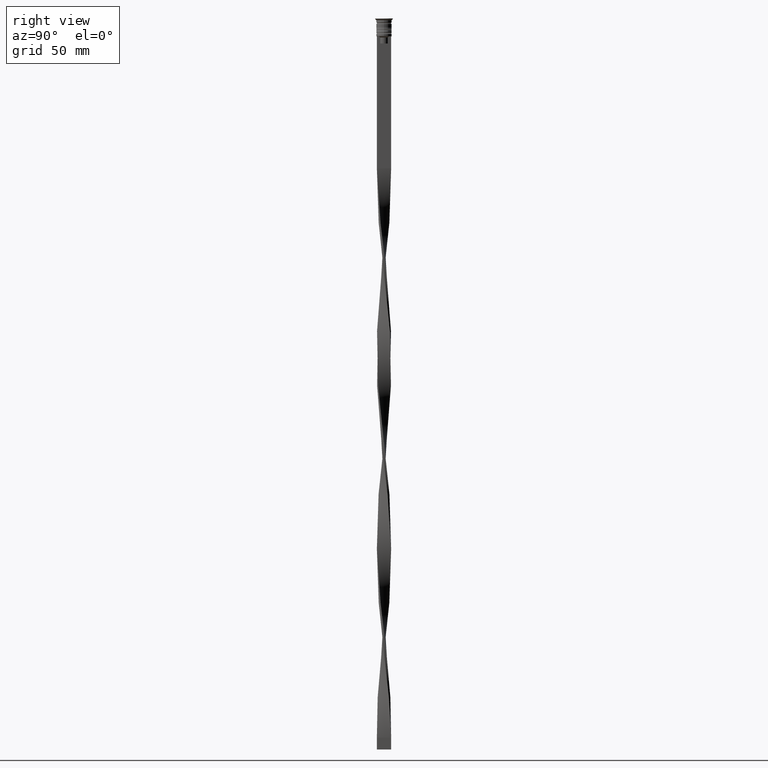
[diagram: clean part render]
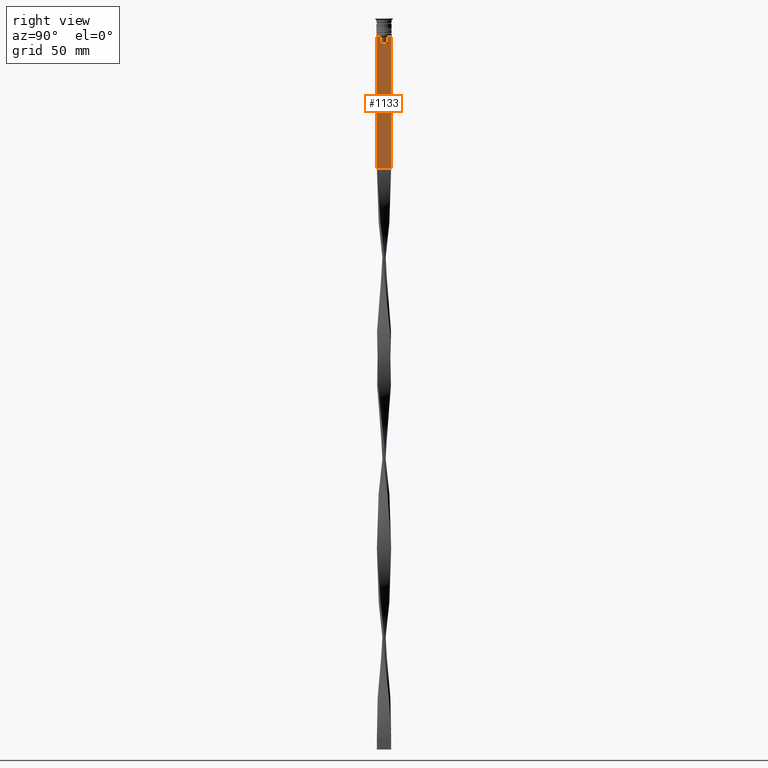
[diagram: same view with one face highlighted and labeled with its STEP entity id]
A machine part, right view. The second image highlights one B-rep face of the part: STEP entity #1133.
In plain terms, the highlighted planar face has unit normal (-1, 0, 0).
Its self-contained STEP definition (entity closure, byte-faithful):
#51 = CARTESIAN_POINT ( 'NONE',  ( 0.4999999999999998890, -2.091052366632653481, -7.500000000000000000 ) ) ;
#61 = EDGE_CURVE ( 'NONE', #1321, #872, #3564, .T. ) ;
#79 = CARTESIAN_POINT ( 'NONE',  ( 0.4999999999999998890, 1.572418519351642452, 0.000000000000000000 ) ) ;
#83 = VERTEX_POINT ( 'NONE', #2180 ) ;
#107 = ORIENTED_EDGE ( 'NONE', *, *, #2167, .T. ) ;
#137 = DIRECTION ( 'NONE',  ( 0.000000000000000000, -1.000000000000000000, 0.000000000000000000 ) ) ;
#169 = ORIENTED_EDGE ( 'NONE', *, *, #1551, .T. ) ;
#274 = VECTOR ( 'NONE', #3203, 1000.000000000000000 ) ;
#322 = LINE ( 'NONE', #543, #274 ) ;
#326 = ORIENTED_EDGE ( 'NONE', *, *, #3583, .T. ) ;
#333 = EDGE_CURVE ( 'NONE', #1866, #83, #322, .T. ) ;
#377 = B_SPLINE_CURVE_WITH_KNOTS ( 'NONE', 3,
 ( #1649, #744, #1635, #3694 ),
 .UNSPECIFIED., .F., .F.,
 ( 4, 4 ),
 ( 0.003696428037903523069, 0.004416830248125226156 ),
 .UNSPECIFIED. ) ;
#388 = CARTESIAN_POINT ( 'NONE',  ( 0.4999999999999998890, -1.746240429054158660, -7.834351036433149673 ) ) ;
#424 = B_SPLINE_CURVE_WITH_KNOTS ( 'NONE', 3,
 ( #3616, #388, #2720, #51 ),
 .UNSPECIFIED., .F., .F.,
 ( 4, 4 ),
 ( 0.008356915209744729747, 0.009073319521387651632 ),
 .UNSPECIFIED. ) ;
#434 = CARTESIAN_POINT ( 'NONE',  ( 0.4999999999999998890, 1.650000000000003464, -10.49999999999999822 ) ) ;
#465 = VECTOR ( 'NONE', #137, 1000.000000000000000 ) ;
#543 = CARTESIAN_POINT ( 'NONE',  ( 0.4999999999999998890, -3.000000000000000000, -7.500000000000000000 ) ) ;
#598 = DIRECTION ( 'NONE',  ( 0.000000000000000000, 0.000000000000000000, -1.000000000000000000 ) ) ;
#726 = LINE ( 'NONE', #1165, #1715 ) ;
#744 = CARTESIAN_POINT ( 'NONE',  ( 0.4999999999999998890, 1.918907889994530436, -7.667424704779945976 ) ) ;
#765 = DIRECTION ( 'NONE',  ( -1.000000000000000000, 0.000000000000000000, 0.000000000000000000 ) ) ;
#859 = CARTESIAN_POINT ( 'NONE',  ( 0.4999999999999998890, -2.091052366632653481, -7.500000000000000000 ) ) ;
#872 = VERTEX_POINT ( 'NONE', #2713 ) ;
#971 = DIRECTION ( 'NONE',  ( 0.000000000000000000, 0.000000000000000000, -1.000000000000000000 ) ) ;
#1055 = LINE ( 'NONE', #1963, #1352 ) ;
#1128 = DIRECTION ( 'NONE',  ( 0.000000000000000000, 0.000000000000000000, 1.000000000000000000 ) ) ;
#1133 = ADVANCED_FACE ( 'NONE', ( #2434 ), #2223, .F. ) ;
#1165 = CARTESIAN_POINT ( 'NONE',  ( 0.4999999999999998890, -3.000000000000000000, -7.500000000000000000 ) ) ;
#1174 = CARTESIAN_POINT ( 'NONE',  ( 0.4999999999999998890, 1.572418519351642452, -8.000000000000000000 ) ) ;
#1191 = EDGE_CURVE ( 'NONE', #1518, #3471, #1672, .T. ) ;
#1202 = VERTEX_POINT ( 'NONE', #2565 ) ;
#1287 = AXIS2_PLACEMENT_3D ( 'NONE', #2283, #765, #1128 ) ;
#1288 = CARTESIAN_POINT ( 'NONE',  ( 0.4999999999999998890, 3.000000000000000000, -7.500000000000000000 ) ) ;
#1321 = VERTEX_POINT ( 'NONE', #1503 ) ;
#1352 = VECTOR ( 'NONE', #1915, 1000.000000000000000 ) ;
#1395 = VERTEX_POINT ( 'NONE', #2985 ) ;
#1503 = CARTESIAN_POINT ( 'NONE',  ( 0.4999999999999998890, -1.572418519351642452, -10.49999999999999822 ) ) ;
#1518 = VERTEX_POINT ( 'NONE', #1288 ) ;
#1541 = VECTOR ( 'NONE', #971, 1000.000000000000000 ) ;
#1546 = VECTOR ( 'NONE', #598, 1000.000000000000000 ) ;
#1551 = EDGE_CURVE ( 'NONE', #1518, #2562, #726, .T. ) ;
#1635 = CARTESIAN_POINT ( 'NONE',  ( 0.4999999999999998890, 1.746261636039131870, -7.834330826581080487 ) ) ;
#1649 = CARTESIAN_POINT ( 'NONE',  ( 0.4999999999999998890, 2.091052366632653481, -7.500000000000000000 ) ) ;
#1653 = DIRECTION ( 'NONE',  ( 0.000000000000000000, 0.000000000000000000, -1.000000000000000000 ) ) ;
#1672 = LINE ( 'NONE', #2825, #2715 ) ;
#1715 = VECTOR ( 'NONE', #2620, 1000.000000000000000 ) ;
#1743 = ORIENTED_EDGE ( 'NONE', *, *, #333, .T. ) ;
#1866 = VERTEX_POINT ( 'NONE', #859 ) ;
#1893 = LINE ( 'NONE', #434, #465 ) ;
#1901 = ORIENTED_EDGE ( 'NONE', *, *, #2380, .T. ) ;
#1915 = DIRECTION ( 'NONE',  ( 0.000000000000000000, 1.000000000000000000, 0.000000000000000000 ) ) ;
#1963 = CARTESIAN_POINT ( 'NONE',  ( 0.4999999999999998890, -3.000000000000000000, -63.00000000000000000 ) ) ;
#2068 = ORIENTED_EDGE ( 'NONE', *, *, #1191, .F. ) ;
#2167 = EDGE_CURVE ( 'NONE', #872, #1866, #424, .T. ) ;
#2180 = CARTESIAN_POINT ( 'NONE',  ( 0.4999999999999998890, -3.000000000000000000, -7.500000000000000000 ) ) ;
#2189 = EDGE_LOOP ( 'NONE', ( #169, #326, #3603, #2406, #2628, #107, #1743, #1901, #2509, #2068 ) ) ;
#2223 = PLANE ( 'NONE',  #1287 ) ;
#2283 = CARTESIAN_POINT ( 'NONE',  ( 0.4999999999999998890, -3.000000000000000000, -1.417237469701779329 ) ) ;
#2380 = EDGE_CURVE ( 'NONE', #83, #1202, #3336, .T. ) ;
#2406 = ORIENTED_EDGE ( 'NONE', *, *, #2940, .T. ) ;
#2434 = FACE_OUTER_BOUND ( 'NONE', #2189, .T. ) ;
#2470 = CARTESIAN_POINT ( 'NONE',  ( 0.4999999999999998890, -3.000000000000000000, -1.417237469701779329 ) ) ;
#2509 = ORIENTED_EDGE ( 'NONE', *, *, #2681, .T. ) ;
#2562 = VERTEX_POINT ( 'NONE', #3505 ) ;
#2565 = CARTESIAN_POINT ( 'NONE',  ( 0.4999999999999998890, -3.000000000000000000, -63.00000000000000000 ) ) ;
#2620 = DIRECTION ( 'NONE',  ( 0.000000000000000000, -1.000000000000000000, 0.000000000000000000 ) ) ;
#2628 = ORIENTED_EDGE ( 'NONE', *, *, #61, .T. ) ;
#2681 = EDGE_CURVE ( 'NONE', #1202, #3471, #1055, .T. ) ;
#2713 = CARTESIAN_POINT ( 'NONE',  ( 0.4999999999999998890, -1.572418519351642452, -8.000000000000000000 ) ) ;
#2715 = VECTOR ( 'NONE', #1653, 1000.000000000000000 ) ;
#2720 = CARTESIAN_POINT ( 'NONE',  ( 0.4999999999999998890, -1.918909712772151721, -7.667422931978337353 ) ) ;
#2804 = DIRECTION ( 'NONE',  ( -0.000000000000000000, -0.000000000000000000, 1.000000000000000000 ) ) ;
#2808 = CARTESIAN_POINT ( 'NONE',  ( 0.4999999999999998890, 3.000000000000000000, -63.00000000000000000 ) ) ;
#2825 = CARTESIAN_POINT ( 'NONE',  ( 0.4999999999999998890, 3.000000000000000000, -1.417237469701779329 ) ) ;
#2940 = EDGE_CURVE ( 'NONE', #1395, #1321, #1893, .T. ) ;
#2985 = CARTESIAN_POINT ( 'NONE',  ( 0.4999999999999998890, 1.572418519351642452, -10.49999999999999822 ) ) ;
#3074 = VERTEX_POINT ( 'NONE', #1174 ) ;
#3203 = DIRECTION ( 'NONE',  ( 0.000000000000000000, -1.000000000000000000, 0.000000000000000000 ) ) ;
#3280 = LINE ( 'NONE', #79, #1546 ) ;
#3336 = LINE ( 'NONE', #2470, #1541 ) ;
#3406 = CARTESIAN_POINT ( 'NONE',  ( 0.4999999999999998890, -1.572418519351642452, 0.000000000000000000 ) ) ;
#3417 = EDGE_CURVE ( 'NONE', #3074, #1395, #3280, .T. ) ;
#3454 = VECTOR ( 'NONE', #2804, 1000.000000000000000 ) ;
#3471 = VERTEX_POINT ( 'NONE', #2808 ) ;
#3505 = CARTESIAN_POINT ( 'NONE',  ( 0.4999999999999998890, 2.091052366632653481, -7.500000000000000000 ) ) ;
#3564 = LINE ( 'NONE', #3406, #3454 ) ;
#3583 = EDGE_CURVE ( 'NONE', #2562, #3074, #377, .T. ) ;
#3603 = ORIENTED_EDGE ( 'NONE', *, *, #3417, .T. ) ;
#3616 = CARTESIAN_POINT ( 'NONE',  ( 0.4999999999999998890, -1.572418519351642452, -8.000000000000000000 ) ) ;
#3694 = CARTESIAN_POINT ( 'NONE',  ( 0.4999999999999998890, 1.572418519351642452, -8.000000000000000000 ) ) ;